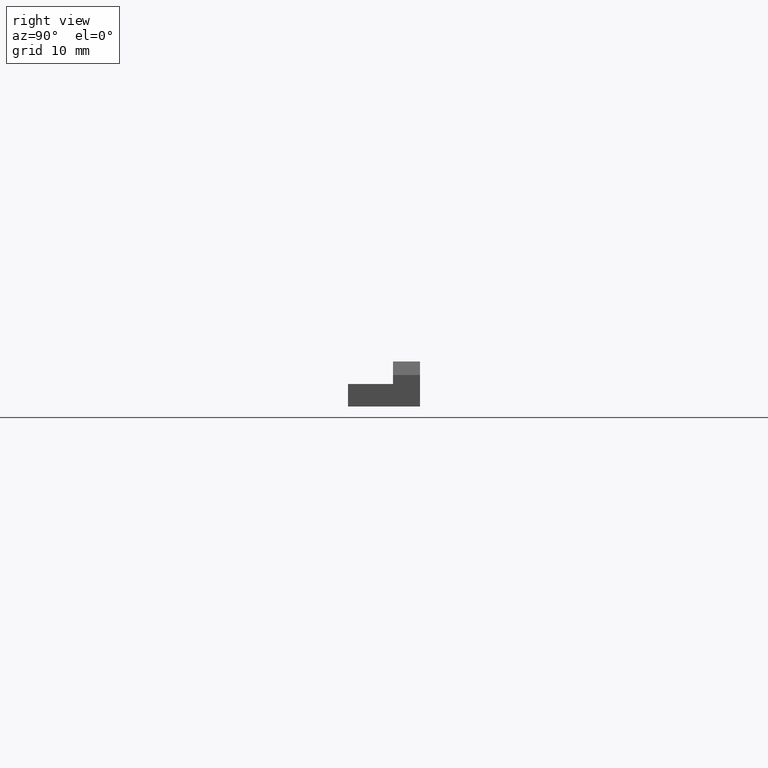
[diagram: clean part render]
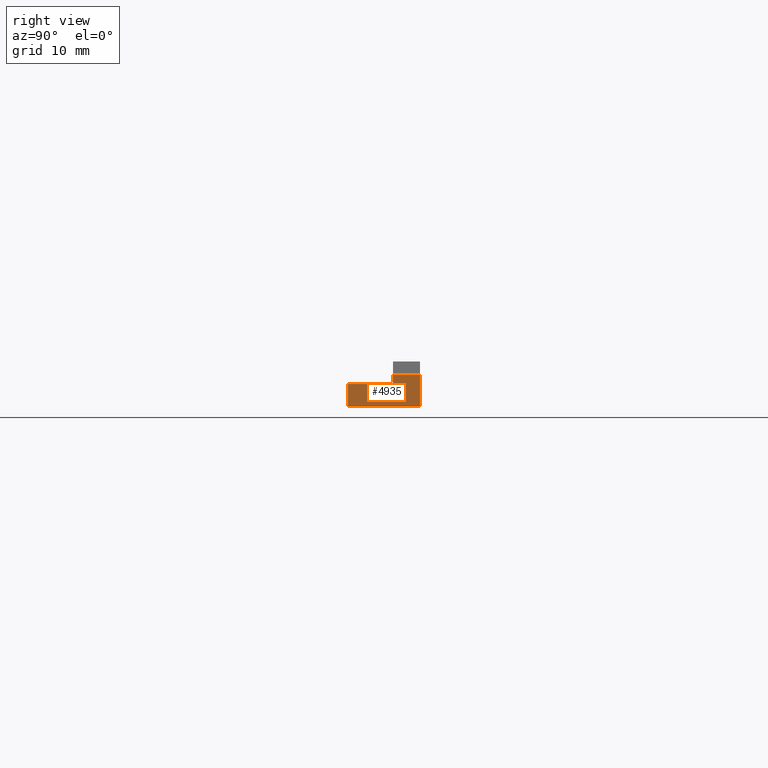
[diagram: same view with one face highlighted and labeled with its STEP entity id]
A machine part, right view. The second image highlights one B-rep face of the part: STEP entity #4935.
In plain terms, the highlighted face is a freeform B-spline surface patch.
Its self-contained STEP definition (entity closure, byte-faithful):
#1884=CARTESIAN_POINT('',(40.209991999999801,5.500000000000000,3.500000000000000));
#1885=VERTEX_POINT('',#1884);
#1891=CARTESIAN_POINT('',(40.209991999999801,5.500000000000000,0.0));
#1892=VERTEX_POINT('',#1891);
#1893=CARTESIAN_POINT('',(40.209991999999801,5.500000000000000,0.0));
#1894=CARTESIAN_POINT('',(40.209991999999801,5.500000000000000,3.500000000000000));
#1895=QUASI_UNIFORM_CURVE('',1,(#1893,#1894),.UNSPECIFIED.,.F.,.U.);
#1896=EDGE_CURVE('',#1892,#1885,#1895,.T.);
#4733=CARTESIAN_POINT('',(40.209991999999801,2.499999999999945,3.500000000000000));
#4734=VERTEX_POINT('',#4733);
#4740=CARTESIAN_POINT('',(40.209991999999801,5.500000000000000,3.500000000000000));
#4741=CARTESIAN_POINT('',(40.209991999999801,2.499999999999945,3.500000000000000));
#4742=QUASI_UNIFORM_CURVE('',1,(#4740,#4741),.UNSPECIFIED.,.F.,.U.);
#4743=EDGE_CURVE('',#1885,#4734,#4742,.T.);
#4757=CARTESIAN_POINT('',(40.209991999999751,2.499999999999915,2.499999999999901));
#4758=VERTEX_POINT('',#4757);
#4764=CARTESIAN_POINT('',(40.209991999999751,2.499999999999915,2.499999999999901));
#4765=CARTESIAN_POINT('',(40.209991999999801,2.499999999999945,3.500000000000000));
#4766=QUASI_UNIFORM_CURVE('',1,(#4764,#4765),.UNSPECIFIED.,.F.,.U.);
#4767=EDGE_CURVE('',#4758,#4734,#4766,.T.);
#4906=CARTESIAN_POINT('',(40.209991999999801,-2.899599984494537,3.674824993216321));
#4907=CARTESIAN_POINT('',(40.209991999999801,5.899600199071173,3.674824993216321));
#4908=CARTESIAN_POINT('',(40.209991999999801,-2.899599984494537,-0.174825087093637));
#4909=CARTESIAN_POINT('',(40.209991999999801,5.899600199071173,-0.174825087093637));
#4910=B_SPLINE_SURFACE_WITH_KNOTS('',1,1,((#4906,#4908),(#4907,#4909)),.UNSPECIFIED.,.F.,.F.,.U.,(2,2),(2,2),(0.0,8.799200183565711),(0.0,3.849650080309957),.UNSPECIFIED.);
#4911=CARTESIAN_POINT('',(40.209991999999751,-2.500000000000085,-1.530758E-016));
#4912=VERTEX_POINT('',#4911);
#4913=CARTESIAN_POINT('',(40.209991999999751,-2.500000000000085,2.499999999999901));
#4914=VERTEX_POINT('',#4913);
#4915=CARTESIAN_POINT('',(40.209991999999751,-2.500000000000085,-1.530758E-016));
#4916=CARTESIAN_POINT('',(40.209991999999751,-2.500000000000085,2.499999999999901));
#4917=QUASI_UNIFORM_CURVE('',1,(#4915,#4916),.UNSPECIFIED.,.F.,.U.);
#4918=EDGE_CURVE('',#4912,#4914,#4917,.T.);
#4919=ORIENTED_EDGE('',*,*,#4918,.F.);
#4920=CARTESIAN_POINT('',(40.209991999999801,5.500000000000000,0.0));
#4921=CARTESIAN_POINT('',(40.209991999999751,-2.500000000000085,-1.530758E-016));
#4922=QUASI_UNIFORM_CURVE('',1,(#4920,#4921),.UNSPECIFIED.,.F.,.U.);
#4923=EDGE_CURVE('',#1892,#4912,#4922,.T.);
#4924=ORIENTED_EDGE('',*,*,#4923,.F.);
#4925=ORIENTED_EDGE('',*,*,#1896,.T.);
#4926=ORIENTED_EDGE('',*,*,#4743,.T.);
#4927=ORIENTED_EDGE('',*,*,#4767,.F.);
#4928=CARTESIAN_POINT('',(40.209991999999751,-2.500000000000085,2.499999999999901));
#4929=CARTESIAN_POINT('',(40.209991999999751,2.499999999999915,2.499999999999901));
#4930=QUASI_UNIFORM_CURVE('',1,(#4928,#4929),.UNSPECIFIED.,.F.,.U.);
#4931=EDGE_CURVE('',#4914,#4758,#4930,.T.);
#4932=ORIENTED_EDGE('',*,*,#4931,.F.);
#4933=EDGE_LOOP('',(#4919,#4924,#4925,#4926,#4927,#4932));
#4934=FACE_OUTER_BOUND('',#4933,.T.);
#4935=ADVANCED_FACE('',(#4934),#4910,.F.);